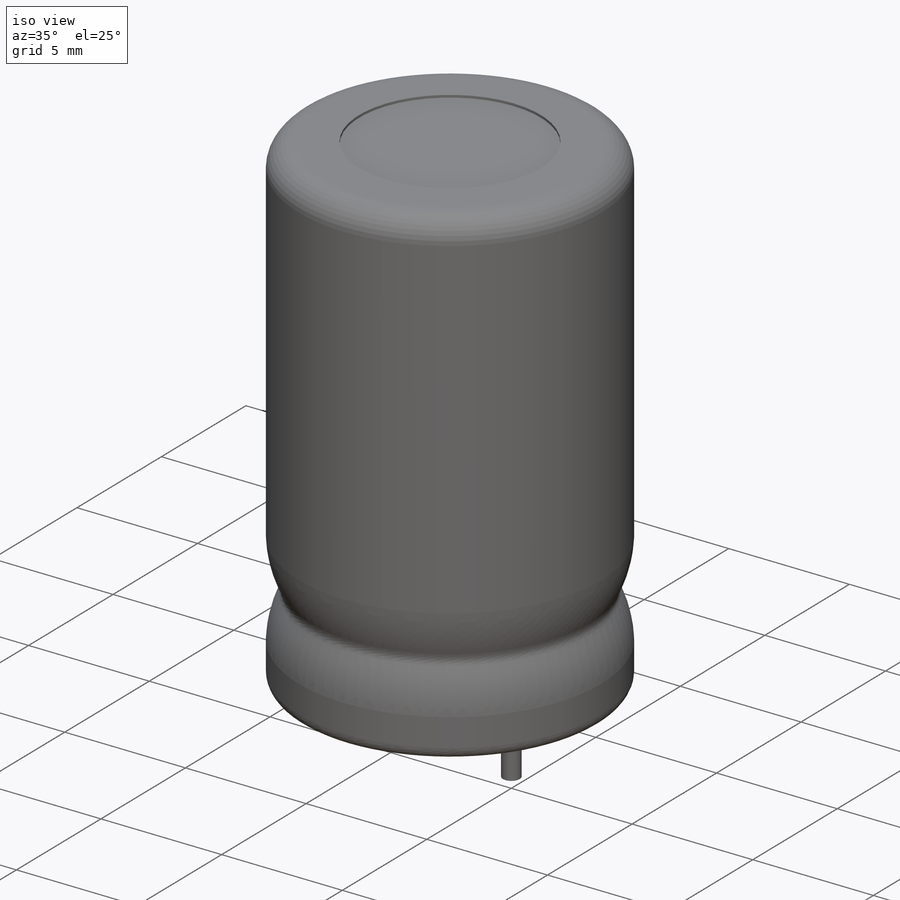
[diagram: iso view]
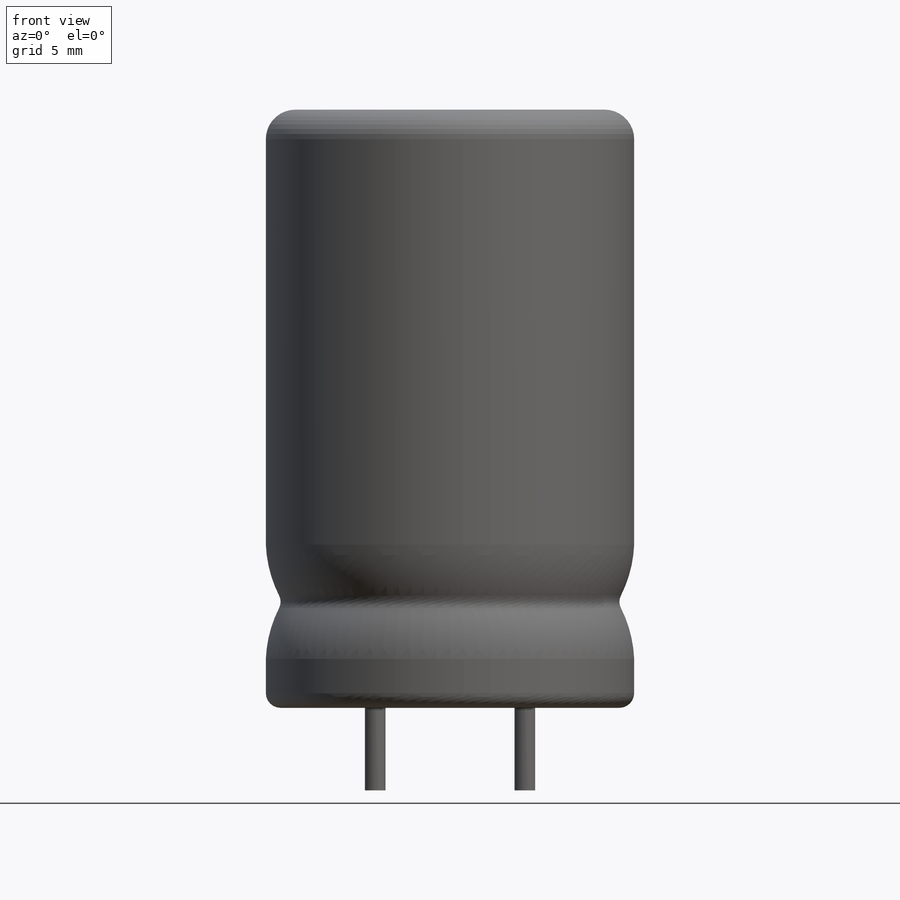
[diagram: front view]
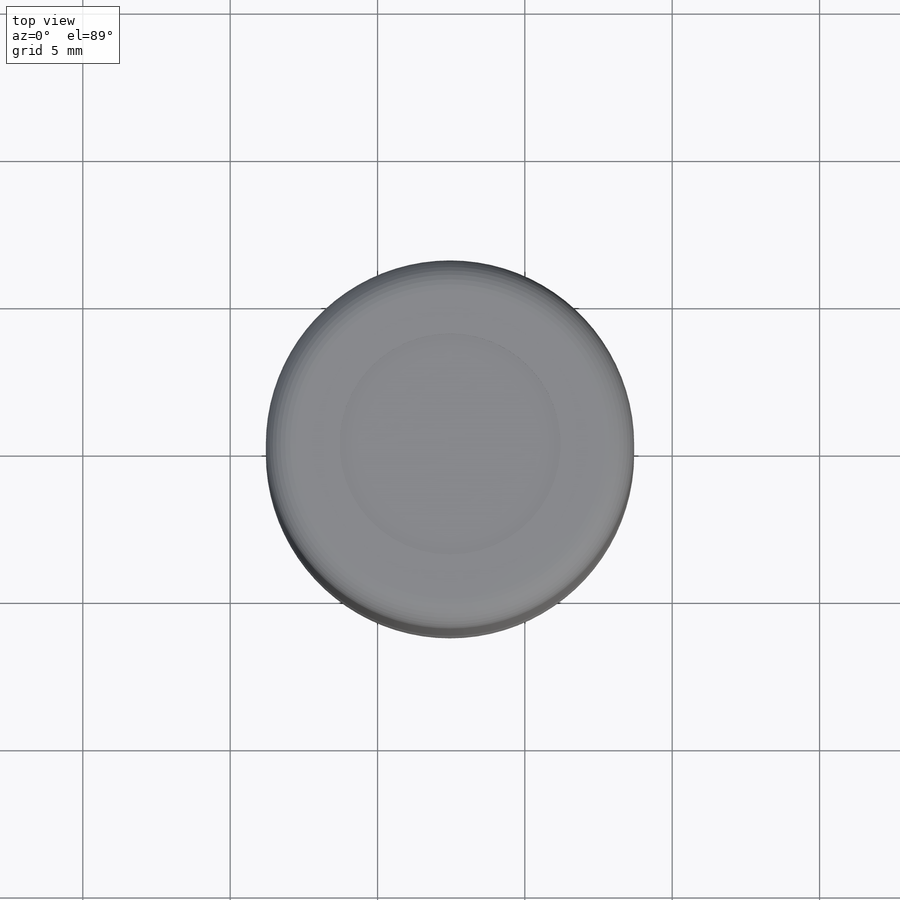
[diagram: top view]
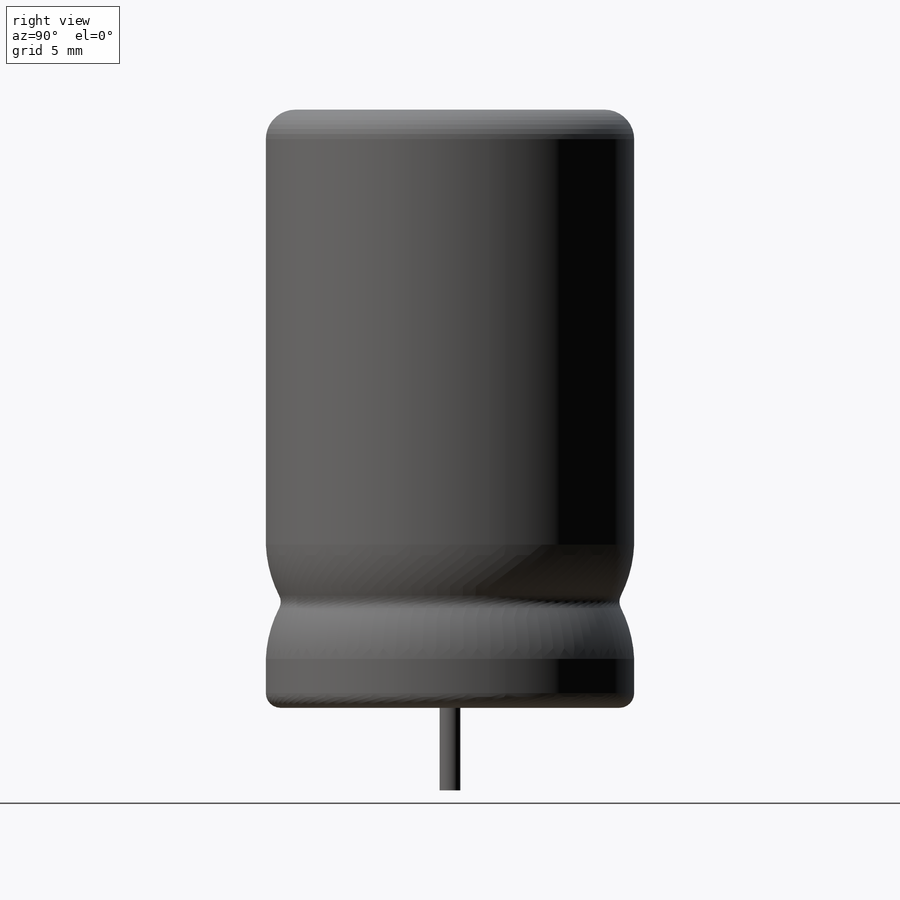
[diagram: right view]
SOLIDWORKS PART (.sldprt)
format: sldprt  version: not decoded by parser v0  size: 307,712 bytes
history: native  units: mm
features: sketch x8, extrude x4, plane x2, cut_extrude x2, fillet x2, material x1, cut_revolve x1 (+12 scaffold rows collapsed)
feature tree (32):
  scaffold x12  (default folders/planes/origin — collapsed)
  material  "Material <not specified>"
  sketch  "Sketch2"  dims[D1=0.7mm]
  extrude  "Base-Extrude"  Depth=3mm
  sketch  "Sketch3"  dims[D1=7.5mm D2=1.21mm]
  extrude  "Boss-Extrude1"  Depth=0.5mm
  plane  "Plane5"  Offset=0.1mm
  sketch  "Sketch4"  dims[D1=0.86mm]
  extrude  "Boss-Extrude2"  Depth=3mm
  sketch  "Sketch5"  dims[D1=12.5mm]
  extrude  "Boss-Extrude4"  Depth=0.1mm
  sketch  "Sketch7"  dims[D1=7.5mm D2=0.7mm]
  cut_extrude  "Cut-Extrude3"  Depth=0.1mm
  fillet  "Fillet1"  Radius=0.5mm
  fillet  "Fillet2"  Radius=1mm
  sketch  "Sketch8"  dims[D1=7.5mm]
  cut_extrude  "Cut-Extrude4"  Depth=0.1mm
  sketch  "Sketch10"  dims[c1.D8=5.0mm c1.D1=0.5mm c1.D2=3.4mm c1.D3=5.69mm c1.D4=1.11mm c1.D5=3.26mm c1.D6=0.42mm c1.D7=0.21mm c2.D8=0.5mm]
  cut_revolve  "Cut-Revolve1"  Angle=360deg
  plane  "Board Plane"  Offset=0.5mm
  sketch  "Component_Outline"
decode coverage: 16 of 17 modeling features carry decoded parameters
note: suppression state not decoded; provenance and decode notes live in map.json
